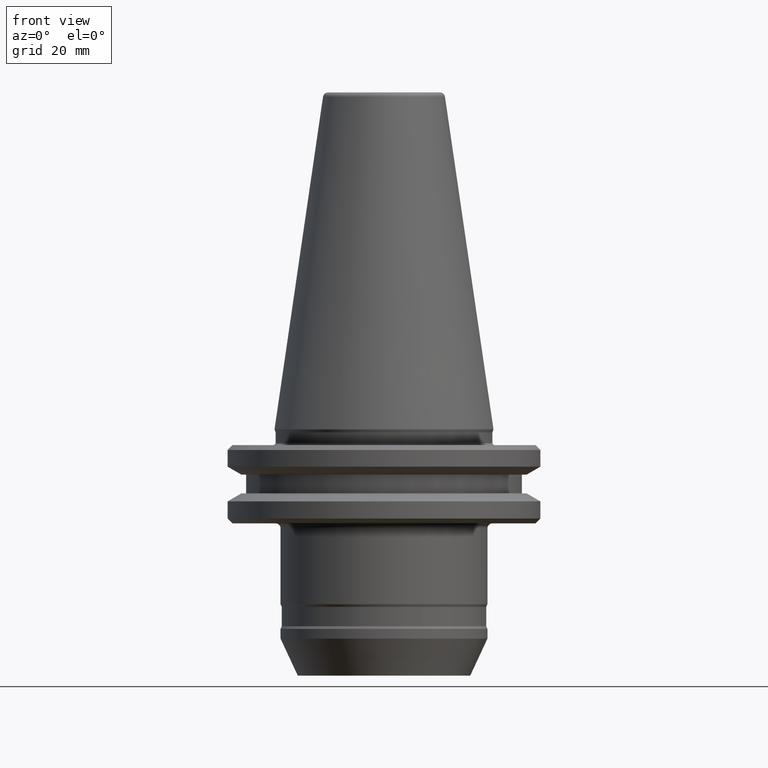
[diagram: clean part render]
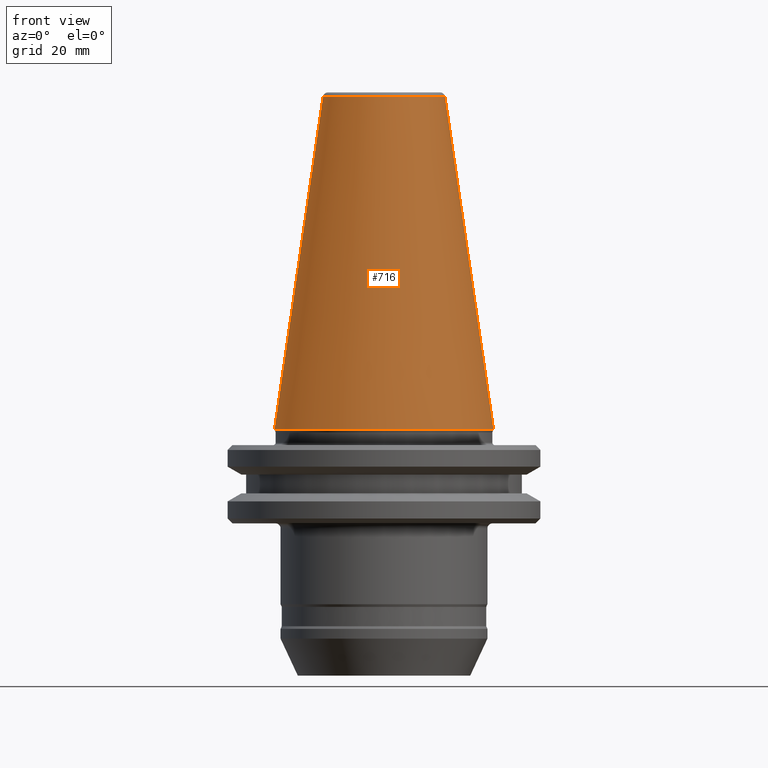
[diagram: same view with one face highlighted and labeled with its STEP entity id]
A machine part, front view. The second image highlights one B-rep face of the part: STEP entity #716.
In plain terms, the highlighted conical surface has half-angle 8.297 deg.
Its self-contained STEP definition (entity closure, byte-faithful):
#7 = CARTESIAN_POINT ( 'NONE',  ( 0.0000000000000000000, 0.0000000000000000000, 1.387778780781445700E-014 ) ) ;
#18 = EDGE_CURVE ( 'NONE', #181, #44, #141, .T. ) ;
#44 = VERTEX_POINT ( 'NONE', #1090 ) ;
#72 = ORIENTED_EDGE ( 'NONE', *, *, #1117, .F. ) ;
#136 = CARTESIAN_POINT ( 'NONE',  ( -22.22499999999986300, 0.0000000000000000000, 1.387778780781445700E-014 ) ) ;
#141 = CIRCLE ( 'NONE', #841, 22.22499999999986300 ) ;
#143 = CARTESIAN_POINT ( 'NONE',  ( 12.37469540292227200, 2.118620311333099200E-015, 67.54430822688374300 ) ) ;
#181 = VERTEX_POINT ( 'NONE', #1178 ) ;
#211 = EDGE_LOOP ( 'NONE', ( #248, #72, #490, #721 ) ) ;
#244 = CIRCLE ( 'NONE', #595, 12.37469540292227200 ) ;
#248 = ORIENTED_EDGE ( 'NONE', *, *, #275, .F. ) ;
#275 = EDGE_CURVE ( 'NONE', #962, #44, #1132, .T. ) ;
#325 = DIRECTION ( 'NONE',  ( -1.000000000000000000, 0.0000000000000000000, 0.0000000000000000000 ) ) ;
#367 = CONICAL_SURFACE ( 'NONE', #1096, 22.22499999999986300, 0.1448138461595524000 ) ;
#369 = DIRECTION ( 'NONE',  ( -0.0000000000000000000, -0.0000000000000000000, 1.000000000000000000 ) ) ;
#377 = EDGE_CURVE ( 'NONE', #436, #181, #1097, .T. ) ;
#399 = CARTESIAN_POINT ( 'NONE',  ( -12.37469540292227200, 0.0000000000000000000, 67.54430822688374300 ) ) ;
#423 = DIRECTION ( 'NONE',  ( 0.1443082268835002300, 1.767266081435085700E-017, -0.9895327865481469100 ) ) ;
#436 = VERTEX_POINT ( 'NONE', #399 ) ;
#490 = ORIENTED_EDGE ( 'NONE', *, *, #377, .T. ) ;
#505 = DIRECTION ( 'NONE',  ( 0.0000000000000000000, 0.0000000000000000000, -1.000000000000000000 ) ) ;
#523 = VECTOR ( 'NONE', #1033, 999.9999999999998900 ) ;
#595 = AXIS2_PLACEMENT_3D ( 'NONE', #910, #369, #1005 ) ;
#657 = DIRECTION ( 'NONE',  ( 1.000000000000000000, 0.0000000000000000000, 0.0000000000000000000 ) ) ;
#716 = ADVANCED_FACE ( 'NONE', ( #1104 ), #367, .T. ) ;
#721 = ORIENTED_EDGE ( 'NONE', *, *, #18, .T. ) ;
#841 = AXIS2_PLACEMENT_3D ( 'NONE', #7, #1012, #657 ) ;
#910 = CARTESIAN_POINT ( 'NONE',  ( 0.0000000000000000000, 0.0000000000000000000, 67.54430822688374300 ) ) ;
#962 = VERTEX_POINT ( 'NONE', #143 ) ;
#972 = CARTESIAN_POINT ( 'NONE',  ( 0.0000000000000000000, 0.0000000000000000000, 1.387778780781445700E-014 ) ) ;
#1005 = DIRECTION ( 'NONE',  ( 1.000000000000000000, 0.0000000000000000000, 0.0000000000000000000 ) ) ;
#1012 = DIRECTION ( 'NONE',  ( -0.0000000000000000000, -0.0000000000000000000, 1.000000000000000000 ) ) ;
#1033 = DIRECTION ( 'NONE',  ( -0.1443082268835002300, 0.0000000000000000000, -0.9895327865481469100 ) ) ;
#1090 = CARTESIAN_POINT ( 'NONE',  ( 22.22499999999986300, 0.0000000000000000000, 1.387778780781445700E-014 ) ) ;
#1096 = AXIS2_PLACEMENT_3D ( 'NONE', #972, #505, #325 ) ;
#1097 = LINE ( 'NONE', #136, #523 ) ;
#1104 = FACE_OUTER_BOUND ( 'NONE', #211, .T. ) ;
#1117 = EDGE_CURVE ( 'NONE', #436, #962, #244, .T. ) ;
#1132 = LINE ( 'NONE', #1201, #1160 ) ;
#1160 = VECTOR ( 'NONE', #423, 999.9999999999998900 ) ;
#1178 = CARTESIAN_POINT ( 'NONE',  ( -22.22499999999986300, 2.721777511104975500E-015, 1.387778780781445700E-014 ) ) ;
#1201 = CARTESIAN_POINT ( 'NONE',  ( 22.22499999999986300, 2.721777511104975900E-015, 1.387778780781445700E-014 ) ) ;